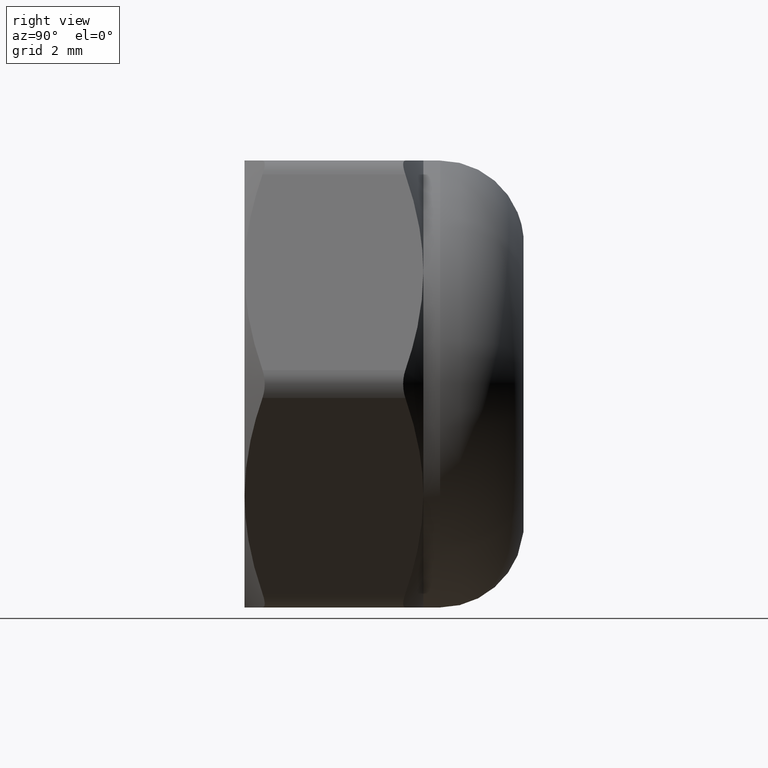
[diagram: clean part render]
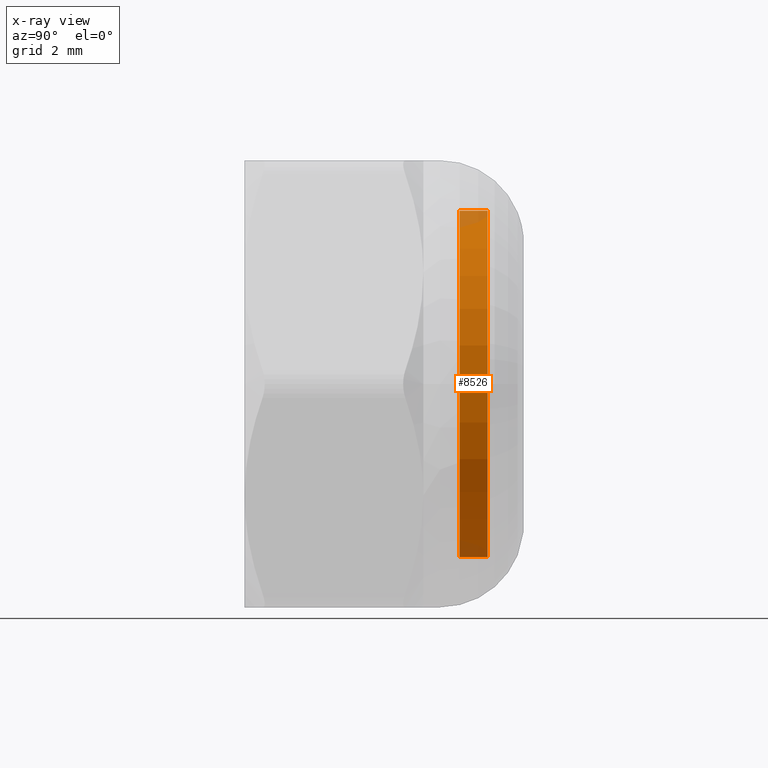
[diagram: x-ray — body ghosted, one internal face saturated and labeled with its STEP entity id]
A machine part, right view, then the same camera in x-ray: the body is ghosted and one INTERNAL B-rep face — a face not visible from any outside direction — is saturated and labeled: STEP entity #8526.
In plain terms, the highlighted cylindrical surface (bore or boss wall) has radius 3.1 mm, axis along (-0, 1, -0).
Its self-contained STEP definition (entity closure, byte-faithful):
#254 = AXIS2_PLACEMENT_3D ( 'NONE', #14790, #9715, #13553 ) ;
#387 = DIRECTION ( 'NONE',  ( 0.000000000000000000, 0.000000000000000000, 1.000000000000000000 ) ) ;
#972 = CARTESIAN_POINT ( 'NONE',  ( 0.000000000000000000, 2.750000000000000000, 3.099999999999999645 ) ) ;
#1372 = CIRCLE ( 'NONE', #254, 3.099999999999999645 ) ;
#1554 = FACE_OUTER_BOUND ( 'NONE', #6134, .T. ) ;
#2220 = EDGE_CURVE ( 'NONE', #2600, #2600, #1372, .T. ) ;
#2600 = VERTEX_POINT ( 'NONE', #972 ) ;
#3504 = FACE_OUTER_BOUND ( 'NONE', #11933, .T. ) ;
#4786 = CARTESIAN_POINT ( 'NONE',  ( 0.000000000000000000, 2.250000000000000000, 0.000000000000000000 ) ) ;
#5009 = CARTESIAN_POINT ( 'NONE',  ( 0.000000000000000000, 2.250000000000000000, 3.099999999999999645 ) ) ;
#6134 = EDGE_LOOP ( 'NONE', ( #9732 ) ) ;
#7185 = DIRECTION ( 'NONE',  ( 0.000000000000000000, 0.000000000000000000, 1.000000000000000000 ) ) ;
#8259 = ORIENTED_EDGE ( 'NONE', *, *, #2220, .T. ) ;
#8526 = ADVANCED_FACE ( 'NONE', ( #1554, #3504 ), #15202, .F. ) ;
#9715 = DIRECTION ( 'NONE',  ( 0.000000000000000000, 1.000000000000000000, 0.000000000000000000 ) ) ;
#9732 = ORIENTED_EDGE ( 'NONE', *, *, #11556, .F. ) ;
#10796 = VERTEX_POINT ( 'NONE', #5009 ) ;
#11176 = AXIS2_PLACEMENT_3D ( 'NONE', #4786, #12171, #7185 ) ;
#11556 = EDGE_CURVE ( 'NONE', #10796, #10796, #14964, .T. ) ;
#11933 = EDGE_LOOP ( 'NONE', ( #8259 ) ) ;
#12026 = AXIS2_PLACEMENT_3D ( 'NONE', #12806, #14090, #387 ) ;
#12171 = DIRECTION ( 'NONE',  ( 0.000000000000000000, 1.000000000000000000, 0.000000000000000000 ) ) ;
#12806 = CARTESIAN_POINT ( 'NONE',  ( 0.000000000000000000, 2.250000000000000000, 0.000000000000000000 ) ) ;
#13553 = DIRECTION ( 'NONE',  ( 0.000000000000000000, 0.000000000000000000, 1.000000000000000000 ) ) ;
#14090 = DIRECTION ( 'NONE',  ( -0.000000000000000000, 1.000000000000000000, -0.000000000000000000 ) ) ;
#14790 = CARTESIAN_POINT ( 'NONE',  ( 0.000000000000000000, 2.750000000000000000, 0.000000000000000000 ) ) ;
#14964 = CIRCLE ( 'NONE', #11176, 3.099999999999999645 ) ;
#15202 = CYLINDRICAL_SURFACE ( 'NONE', #12026, 3.099999999999999645 ) ;